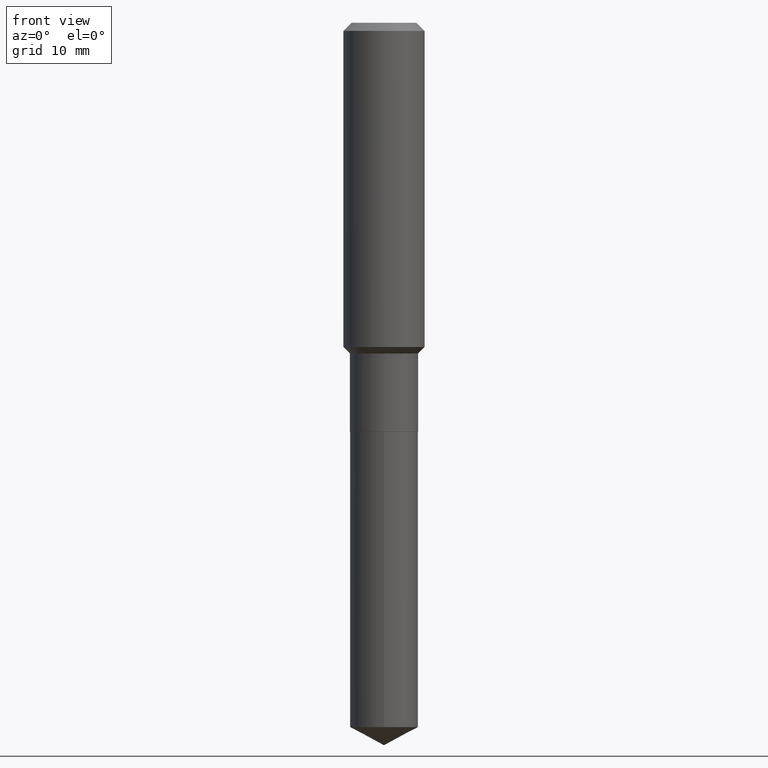
[diagram: clean part render]
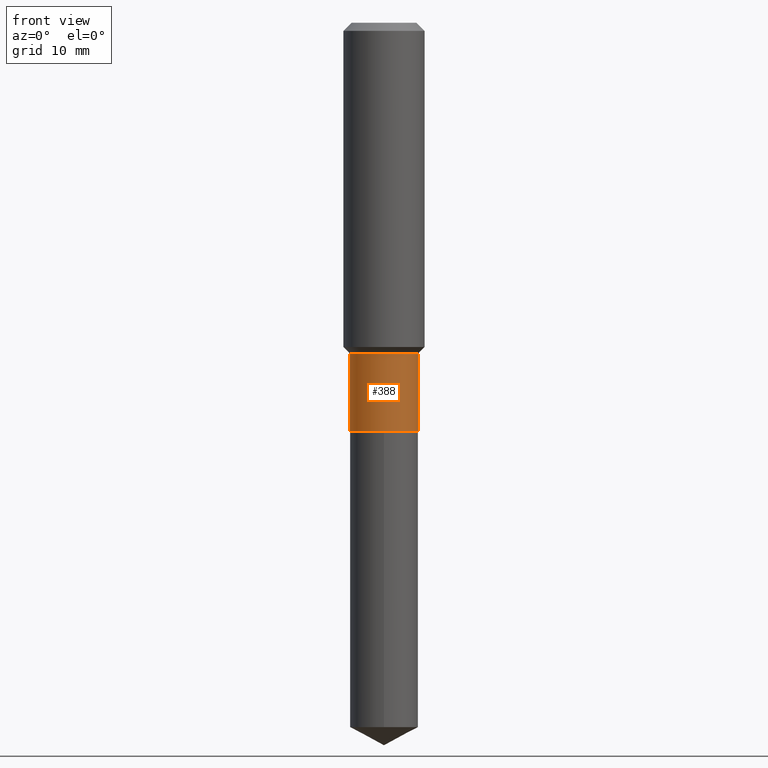
[diagram: same view with one face highlighted and labeled with its STEP entity id]
A machine part, front view. The second image highlights one B-rep face of the part: STEP entity #388.
In plain terms, the highlighted cylindrical surface (edge-blend (fillet) strip) has radius 4.1999 mm, axis along (-0, 0, 1).
Its self-contained STEP definition (entity closure, byte-faithful):
#5 = DIRECTION ( 'NONE',  ( -2.445468806185136877E-29, 3.491481338843145188E-15, 1.000000000000000000 ) ) ;
#9 = ORIENTED_EDGE ( 'NONE', *, *, #253, .T. ) ;
#23 = AXIS2_PLACEMENT_3D ( 'NONE', #384, #280, #220 ) ;
#25 = VERTEX_POINT ( 'NONE', #264 ) ;
#30 = EDGE_CURVE ( 'NONE', #107, #209, #67, .T. ) ;
#67 = LINE ( 'NONE', #204, #362 ) ;
#101 = EDGE_LOOP ( 'NONE', ( #147, #9, #104, #448 ) ) ;
#104 = ORIENTED_EDGE ( 'NONE', *, *, #30, .T. ) ;
#107 = VERTEX_POINT ( 'NONE', #473 ) ;
#113 = CARTESIAN_POINT ( 'NONE',  ( 0.000000000000000000, 0.000000000000000000, 0.000000000000000000 ) ) ;
#147 = ORIENTED_EDGE ( 'NONE', *, *, #466, .F. ) ;
#151 = CARTESIAN_POINT ( 'NONE',  ( -0.1653499999999999415, 1.174882413579325241E-15, -8.133459171736485198E-30 ) ) ;
#170 = AXIS2_PLACEMENT_3D ( 'NONE', #113, #385, #306 ) ;
#187 = LINE ( 'NONE', #151, #338 ) ;
#204 = CARTESIAN_POINT ( 'NONE',  ( 0.1653499999999999415, -1.154632878755423876E-15, 8.062758298778576767E-30 ) ) ;
#209 = VERTEX_POINT ( 'NONE', #438 ) ;
#213 = AXIS2_PLACEMENT_3D ( 'NONE', #360, #290, #250 ) ;
#220 = DIRECTION ( 'NONE',  ( 1.000000000000000000, -6.982962677686267499E-15, 0.000000000000000000 ) ) ;
#250 = DIRECTION ( 'NONE',  ( 1.000000000000000000, -6.982962677686267499E-15, 0.000000000000000000 ) ) ;
#253 = EDGE_CURVE ( 'NONE', #25, #107, #410, .T. ) ;
#264 = CARTESIAN_POINT ( 'NONE',  ( -0.1653499999999999415, -5.088136812037508270E-15, -1.983699999999999575 ) ) ;
#280 = DIRECTION ( 'NONE',  ( -2.445468806185136597E-29, 3.491481338843145583E-15, 1.000000000000000000 ) ) ;
#290 = DIRECTION ( 'NONE',  ( -2.445468806185136597E-29, 3.491481338843145583E-15, 1.000000000000000000 ) ) ;
#296 = VERTEX_POINT ( 'NONE', #465 ) ;
#306 = DIRECTION ( 'NONE',  ( 1.000000000000000000, -6.982962677686267499E-15, 4.876176775795935793E-29 ) ) ;
#321 = EDGE_CURVE ( 'NONE', #296, #209, #451, .T. ) ;
#338 = VECTOR ( 'NONE', #5, 39.37007874015748143 ) ;
#347 = CYLINDRICAL_SURFACE ( 'NONE', #170, 0.1653499999999999415 ) ;
#360 = CARTESIAN_POINT ( 'NONE',  ( 4.851076470829455040E-29, -6.926051531863146205E-15, -1.983699999999999575 ) ) ;
#362 = VECTOR ( 'NONE', #459, 39.37007874015748143 ) ;
#384 = CARTESIAN_POINT ( 'NONE',  ( 3.922287418240340052E-29, -5.599986919370520029E-15, -1.603899999999999881 ) ) ;
#385 = DIRECTION ( 'NONE',  ( -2.445468806185136597E-29, 3.491481338843145583E-15, 1.000000000000000000 ) ) ;
#388 = ADVANCED_FACE ( 'NONE', ( #407 ), #347, .T. ) ;
#407 = FACE_OUTER_BOUND ( 'NONE', #101, .T. ) ;
#410 = CIRCLE ( 'NONE', #213, 0.1653499999999999415 ) ;
#438 = CARTESIAN_POINT ( 'NONE',  ( 0.1653499999999999415, -6.754619798125944299E-15, -1.603899999999999881 ) ) ;
#448 = ORIENTED_EDGE ( 'NONE', *, *, #321, .F. ) ;
#451 = CIRCLE ( 'NONE', #23, 0.1653499999999999415 ) ;
#459 = DIRECTION ( 'NONE',  ( -2.445468806185136877E-29, 3.491481338843145188E-15, 1.000000000000000000 ) ) ;
#465 = CARTESIAN_POINT ( 'NONE',  ( -0.1653499999999999415, -5.088136812037508270E-15, -1.603899999999999881 ) ) ;
#466 = EDGE_CURVE ( 'NONE', #25, #296, #187, .T. ) ;
#473 = CARTESIAN_POINT ( 'NONE',  ( 0.1653499999999999415, -8.080684410618569686E-15, -1.983699999999999575 ) ) ;